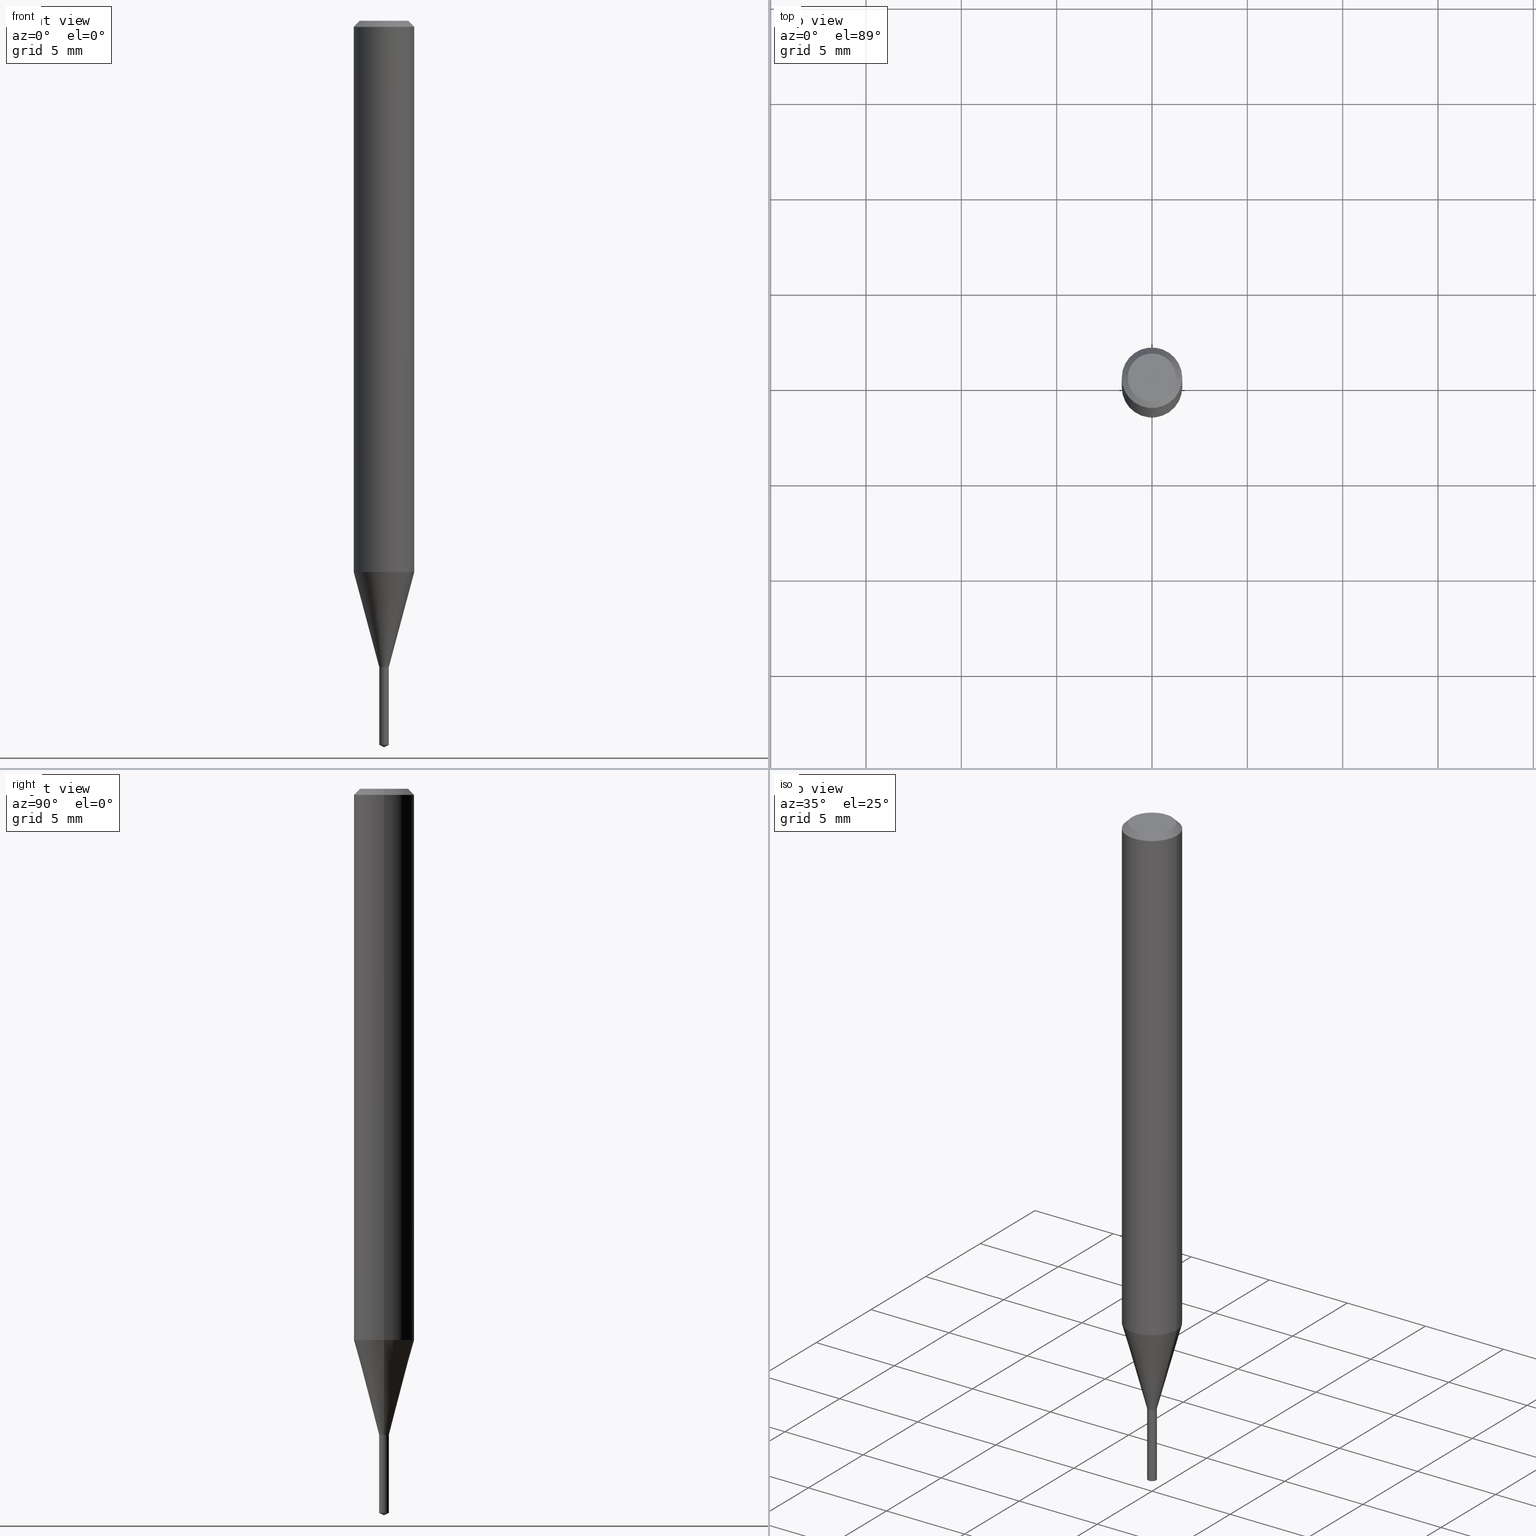
[diagram: canonical four-view strip — front | top / right | iso, engineering-drawing reading convention]
A machine part, canonical four-view strip (front | top / right | iso — engineering-drawing reading convention). The complete STEP part file that produces these views, byte-faithful:
ISO-10303-21;
HEADER;
FILE_DESCRIPTION (( 'STEP AP203' ),
    '1' );
FILE_NAME ('07125.STEP',
    '2024-04-23T19:36:31',
    ( '' ),
    ( '' ),
    'SwSTEP 2.0',
    'SolidWorks 2023',
    '' );
FILE_SCHEMA (( 'CONFIG_CONTROL_DESIGN' ));
ENDSEC;

DATA;
#1 = LINE ( 'NONE', #344, #278 ) ;
#2 = ORIENTED_EDGE ( 'NONE', *, *, #422, .T. ) ;
#3 = ADVANCED_FACE ( 'NONE', ( #464 ), #427, .F. ) ;
#4 = DIRECTION ( 'NONE',  ( -2.445468806185136877E-29, 3.491481338843145188E-15, 1.000000000000000000 ) ) ;
#5 = APPROVAL_ROLE ( '' ) ;
#6 = MANIFOLD_SOLID_BREP ( 'Body-Move/Copy2[1]', #353 ) ;
#7 = EDGE_CURVE ( 'NONE', #284, #342, #173, .T. ) ;
#8 = CARTESIAN_POINT ( 'NONE',  ( 3.663343386174265916E-29, -5.244181551552795844E-15, -1.500000000000000222 ) ) ;
#9 = CLOSED_SHELL ( 'NONE', ( #136, #288, #98, #67, #3, #365, #274, #163, #465, #113, #322, #266 ) ) ;
#10 = EDGE_CURVE ( 'NONE', #115, #234, #221, .T. ) ;
#11 = APPLICATION_PROTOCOL_DEFINITION ( 'international standard', 'config_control_design', 1994, #230 ) ;
#12 = EDGE_LOOP ( 'NONE', ( #185, #227, #340, #69 ) ) ;
#13 = EDGE_CURVE ( 'NONE', #370, #42, #61, .T. ) ;
#14 = EDGE_CURVE ( 'NONE', #72, #416, #101, .T. ) ;
#15 = LINE ( 'NONE', #352, #141 ) ;
#16 = ORIENTED_EDGE ( 'NONE', *, *, #422, .F. ) ;
#17 = DIRECTION ( 'NONE',  ( -2.445468806185136597E-29, 3.491481338843145583E-15, 1.000000000000000000 ) ) ;
#18 = VECTOR ( 'NONE', #228, 39.37007874015748854 ) ;
#19 = DIRECTION ( 'NONE',  ( -2.445468806185136597E-29, 3.491481338843145583E-15, 1.000000000000000000 ) ) ;
#20 = DATE_AND_TIME ( #294, #242 ) ;
#21 = DIRECTION ( 'NONE',  ( 1.000000000000000000, -6.982962677686266711E-15, 4.876176775795935793E-29 ) ) ;
#22 = LINE ( 'NONE', #470, #320 ) ;
#23 = PLANE ( 'NONE',  #382 ) ;
#24 = VECTOR ( 'NONE', #4, 39.37007874015748143 ) ;
#25 = EDGE_CURVE ( 'NONE', #380, #225, #381, .T. ) ;
#26 = SECURITY_CLASSIFICATION ( '', '', #246 ) ;
#27 = FACE_OUTER_BOUND ( 'NONE', #12, .T. ) ;
#28 = CARTESIAN_POINT ( 'NONE',  ( -0.01000000000000000021, -4.587280128708514635E-15, -1.334200000000000275 ) ) ;
#29 = EDGE_LOOP ( 'NONE', ( #196, #311, #187, #106 ) ) ;
#30 = DIRECTION ( 'NONE',  ( 2.445468806185136597E-29, -3.491481338843145583E-15, -1.000000000000000000 ) ) ;
#31 = VERTEX_POINT ( 'NONE', #8 ) ;
#32 = AXIS2_PLACEMENT_3D ( 'NONE', #337, #71, #406 ) ;
#33 = CC_DESIGN_PERSON_AND_ORGANIZATION_ASSIGNMENT ( #56, #88, ( #174 ) ) ;
#34 = DIRECTION ( 'NONE',  ( -2.442228924116177278E-29, 3.496121034368530563E-15, 1.000000000000000000 ) ) ;
#35 = EDGE_LOOP ( 'NONE', ( #152, #83, #407 ) ) ;
#36 = DIRECTION ( 'NONE',  ( 1.000000000000000000, -6.982962677686265922E-15, 4.876194921942043128E-29 ) ) ;
#37 = EDGE_LOOP ( 'NONE', ( #76, #319, #358, #302 ) ) ;
#38 = FACE_OUTER_BOUND ( 'NONE', #269, .T. ) ;
#39 = ORIENTED_EDGE ( 'NONE', *, *, #461, .F. ) ;
#40 = EDGE_CURVE ( 'NONE', #489, #370, #156, .T. ) ;
#41 = CARTESIAN_POINT ( 'NONE',  ( -0.01000000000000000021, 7.105427357601002007E-17, -4.918935090254906272E-31 ) ) ;
#42 = VERTEX_POINT ( 'NONE', #153 ) ;
#43 = ORIENTED_EDGE ( 'NONE', *, *, #57, .T. ) ;
#44 = AXIS2_PLACEMENT_3D ( 'NONE', #383, #117, #158 ) ;
#45 = CALENDAR_DATE ( 2024, 23, 4 ) ;
#46 = ORIENTED_EDGE ( 'NONE', *, *, #142, .F. ) ;
#47 = CARTESIAN_POINT ( 'NONE',  ( 0.06250000000000013878, -4.410674317752272148E-15, -1.138267332602639570 ) ) ;
#48 = CARTESIAN_POINT ( 'NONE',  ( 2.908885144957220354E-29, -4.153117052553921862E-15, -1.189500000000000002 ) ) ;
#49 = DIRECTION ( 'NONE',  ( -2.442228924116177278E-29, 3.496121034368530563E-15, 1.000000000000000000 ) ) ;
#50 = VECTOR ( 'NONE', #397, 39.37007874015748143 ) ;
#51 = PERSON ( 'UNSPECIFIED', 'UNSPECIFIED', 'UNSPECIFIED', ('UNSPECIFIED'), ('UNSPECIFIED'), ('UNSPECIFIED') ) ;
#52 = AXIS2_PLACEMENT_3D ( 'NONE', #179, #304, #445 ) ;
#53 = DIRECTION ( 'NONE',  ( -1.000000000000000000, 6.982962677686265922E-15, -4.876176775795935793E-29 ) ) ;
#54 = EDGE_CURVE ( 'NONE', #284, #42, #315, .T. ) ;
#55 = CYLINDRICAL_SURFACE ( 'NONE', #192, 0.06250000000000006939 ) ;
#56 = PERSON_AND_ORGANIZATION ( #51, #134 ) ;
#57 = EDGE_CURVE ( 'NONE', #351, #426, #361, .T. ) ;
#58 = DIRECTION ( 'NONE',  ( 1.000000000000000000, -6.982962677686266711E-15, 0.000000000000000000 ) ) ;
#59 = ADVANCED_FACE ( 'NONE', ( #122 ), #139, .T. ) ;
#60 = FACE_OUTER_BOUND ( 'NONE', #444, .T. ) ;
#61 = CIRCLE ( 'NONE', #412, 0.01000000000000000021 ) ;
#62 = CARTESIAN_POINT ( 'NONE',  ( 2.910107879360313156E-29, -4.154862793223344154E-15, -1.190000000000000169 ) ) ;
#63 = EDGE_LOOP ( 'NONE', ( #376, #378 ) ) ;
#64 = DIRECTION ( 'NONE',  ( -2.445468806185136877E-29, 3.491481338843145188E-15, 1.000000000000000000 ) ) ;
#65 = CC_DESIGN_DATE_AND_TIME_ASSIGNMENT ( #202, #257, ( #87 ) ) ;
#66 = ORIENTED_EDGE ( 'NONE', *, *, #40, .F. ) ;
#67 = ADVANCED_FACE ( 'NONE', ( #208 ), #285, .T. ) ;
#68 = DIRECTION ( 'NONE',  ( 1.000000000000000000, -6.982962677686266711E-15, 0.000000000000000000 ) ) ;
#69 = ORIENTED_EDGE ( 'NONE', *, *, #240, .F. ) ;
#70 = CIRCLE ( 'NONE', #260, 0.01000000000000000021 ) ;
#71 = DIRECTION ( 'NONE',  ( -2.438088387897960049E-29, 3.491481338843145188E-15, 1.000000000000000000 ) ) ;
#72 = VERTEX_POINT ( 'NONE', #327 ) ;
#73 = DIRECTION ( 'NONE',  ( -2.445468806185136597E-29, 3.491481338843145583E-15, 1.000000000000000000 ) ) ;
#74 = ORIENTED_EDGE ( 'NONE', *, *, #452, .F. ) ;
#75 =( NAMED_UNIT ( * ) PLANE_ANGLE_UNIT ( ) SI_UNIT ( $, .RADIAN. ) );
#76 = ORIENTED_EDGE ( 'NONE', *, *, #194, .F. ) ;
#77 = EDGE_CURVE ( 'NONE', #116, #265, #367, .T. ) ;
#78 = CONICAL_SURFACE ( 'NONE', #436, 0.009499999999999999764, 0.7853981633974130849 ) ;
#79 = DIRECTION ( 'NONE',  ( -1.000000000000000000, 6.982962677686266711E-15, 0.000000000000000000 ) ) ;
#80 = ORIENTED_EDGE ( 'NONE', *, *, #431, .F. ) ;
#81 = DIRECTION ( 'NONE',  ( -2.442228924116177278E-29, 3.496121034368530563E-15, 1.000000000000000000 ) ) ;
#82 = PERSON_AND_ORGANIZATION_ROLE ( 'creator' ) ;
#83 = ORIENTED_EDGE ( 'NONE', *, *, #431, .T. ) ;
#84 = AXIS2_PLACEMENT_3D ( 'NONE', #124, #281, #282 ) ;
#85 = CONICAL_SURFACE ( 'NONE', #52, 0.01000000000000000021, 0.2617993877991570129 ) ;
#86 = DIRECTION ( 'NONE',  ( 1.000000000000000000, -6.982962677686265922E-15, 4.876176775795935793E-29 ) ) ;
#87 = PRODUCT_DEFINITION ( 'UNKNOWN', '', #174, #385 ) ;
#88 = PERSON_AND_ORGANIZATION_ROLE ( 'creator' ) ;
#89 = CARTESIAN_POINT ( 'NONE',  ( 0.000000000000000000, 0.000000000000000000, 0.000000000000000000 ) ) ;
#90 = APPROVAL_STATUS ( 'not_yet_approved' ) ;
#91 = LINE ( 'NONE', #248, #50 ) ;
#92 = COORDINATED_UNIVERSAL_TIME_OFFSET ( 5, 0, .BEHIND. ) ;
#93 = CONICAL_SURFACE ( 'NONE', #328, 0.009499999999999999764, 0.7853981633974130849 ) ;
#94 = VECTOR ( 'NONE', #64, 39.37007874015748143 ) ;
#95 = LINE ( 'NONE', #133, #335 ) ;
#96 = CC_DESIGN_PERSON_AND_ORGANIZATION_ASSIGNMENT ( #403, #211, ( #26 ) ) ;
#97 = ADVANCED_BREP_SHAPE_REPRESENTATION ( '07125', ( #6, #482, #44 ), #293 ) ;
#98 = ADVANCED_FACE ( 'NONE', ( #363 ), #330, .T. ) ;
#99 = DIRECTION ( 'NONE',  ( -2.445468806185136877E-29, 3.491481338843145188E-15, 1.000000000000000000 ) ) ;
#100 = CARTESIAN_POINT ( 'NONE',  ( 2.910107879360313156E-29, -4.154862793223344154E-15, -1.190000000000000169 ) ) ;
#101 = CIRCLE ( 'NONE', #84, 0.06250000000000013878 ) ;
#102 = PLANE ( 'NONE',  #32 ) ;
#103 = AXIS2_PLACEMENT_3D ( 'NONE', #168, #258, #368 ) ;
#104 = LOCAL_TIME ( 15, 36, 31.00000000000000000, #471 ) ;
#105 = CARTESIAN_POINT ( 'NONE',  ( 2.910107879360313156E-29, -4.154862793223344154E-15, -1.190000000000000169 ) ) ;
#106 = ORIENTED_EDGE ( 'NONE', *, *, #222, .F. ) ;
#107 = CARTESIAN_POINT ( 'NONE',  ( -0.06250000000000000000, -1.564852123716145826E-15, -0.01250000000000008049 ) ) ;
#108 = ORIENTED_EDGE ( 'NONE', *, *, #310, .T. ) ;
#109 = DIRECTION ( 'NONE',  ( 1.000000000000000000, -6.982962677686262766E-15, 0.000000000000000000 ) ) ;
#110 = EDGE_LOOP ( 'NONE', ( #199, #391 ) ) ;
#111 = CIRCLE ( 'NONE', #481, 0.01000000000000000021 ) ;
#112 = AXIS2_PLACEMENT_3D ( 'NONE', #339, #447, #109 ) ;
#113 = ADVANCED_FACE ( 'NONE', ( #402 ), #23, .F. ) ;
#114 = CYLINDRICAL_SURFACE ( 'NONE', #442, 0.01000000000000000021 ) ;
#115 = VERTEX_POINT ( 'NONE', #170 ) ;
#116 = VERTEX_POINT ( 'NONE', #291 ) ;
#117 = DIRECTION ( 'NONE',  ( 0.000000000000000000, 0.000000000000000000, 1.000000000000000000 ) ) ;
#118 = DIRECTION ( 'NONE',  ( 0.7071067811865225927, -2.468850131081995948E-15, 0.7071067811865724417 ) ) ;
#119 = AXIS2_PLACEMENT_3D ( 'NONE', #188, #488, #270 ) ;
#120 = CARTESIAN_POINT ( 'NONE',  ( -0.009499999999999999764, -4.087361233326134182E-15, -1.190000000000000169 ) ) ;
#121 = APPROVAL ( #90, 'UNSPECIFIED' ) ;
#122 = FACE_OUTER_BOUND ( 'NONE', #35, .T. ) ;
#123 = DATE_AND_TIME ( #455, #476 ) ;
#124 = CARTESIAN_POINT ( 'NONE',  ( 2.783597254979316381E-29, -3.974239150396879690E-15, -1.138267332602639570 ) ) ;
#125 = APPROVAL_DATE_TIME ( #123, #249 ) ;
#126 = ORIENTED_EDGE ( 'NONE', *, *, #167, .T. ) ;
#127 = AXIS2_PLACEMENT_3D ( 'NONE', #349, #273, #86 ) ;
#128 = CIRCLE ( 'NONE', #392, 0.009499999999999999764 ) ;
#129 = FACE_OUTER_BOUND ( 'NONE', #318, .T. ) ;
#130 = APPLICATION_CONTEXT ( 'configuration controlled 3d designs of mechanical parts and assemblies' ) ;
#131 = DIRECTION ( 'NONE',  ( -6.982962677686265922E-15, -1.000000000000000000, 0.000000000000000000 ) ) ;
#132 = APPROVAL_DATE_TIME ( #213, #485 ) ;
#133 = CARTESIAN_POINT ( 'NONE',  ( 7.105427357603910931E-17, 0.009999999999995843811, -1.190000000000000169 ) ) ;
#134 = ORGANIZATION ( 'UNSPECIFIED', 'UNSPECIFIED', '' ) ;
#135 = CARTESIAN_POINT ( 'NONE',  ( 0.06250000000000000000, -4.724246415962602840E-16, -0.01250000000000008049 ) ) ;
#136 = ADVANCED_FACE ( 'NONE', ( #60 ), #93, .T. ) ;
#137 = DIRECTION ( 'NONE',  ( -2.442228924116177278E-29, 3.496121034368530563E-15, 1.000000000000000000 ) ) ;
#138 = CARTESIAN_POINT ( 'NONE',  ( 2.910107879360313156E-29, -4.154862793223344154E-15, -1.190000000000000169 ) ) ;
#139 = CONICAL_SURFACE ( 'NONE', #450, 84.42940631926779815, 1.134464013796286253 ) ;
#140 = CARTESIAN_POINT ( 'NONE',  ( 0.009499999999999999764, -4.221200938661363657E-15, -1.190000000000000169 ) ) ;
#141 = VECTOR ( 'NONE', #283, 39.37007874015748854 ) ;
#142 = EDGE_CURVE ( 'NONE', #189, #489, #111, .T. ) ;
#143 = ORIENTED_EDGE ( 'NONE', *, *, #279, .F. ) ;
#144 = FACE_OUTER_BOUND ( 'NONE', #229, .T. ) ;
#145 = EDGE_LOOP ( 'NONE', ( #467, #108, #484, #463 ) ) ;
#146 = DIRECTION ( 'NONE',  ( -2.442228924116177278E-29, 3.496121034368530563E-15, 1.000000000000000000 ) ) ;
#147 = ORIENTED_EDGE ( 'NONE', *, *, #413, .T. ) ;
#148 = DIRECTION ( 'NONE',  ( 6.982962677686265922E-15, 1.000000000000000000, -3.496121034368530563E-15 ) ) ;
#149 = ORIENTED_EDGE ( 'NONE', *, *, #14, .F. ) ;
#150 = AXIS2_PLACEMENT_3D ( 'NONE', #89, #366, #21 ) ;
#151 = LENGTH_MEASURE_WITH_UNIT ( LENGTH_MEASURE( 0.02539999999999999897 ), #237 );
#152 = ORIENTED_EDGE ( 'NONE', *, *, #160, .F. ) ;
#153 = CARTESIAN_POINT ( 'NONE',  ( 0.01000000000000000021, -4.222946679330785160E-15, -1.189500000000000002 ) ) ;
#154 = CC_DESIGN_PERSON_AND_ORGANIZATION_ASSIGNMENT ( #350, #82, ( #87 ) ) ;
#155 = CARTESIAN_POINT ( 'NONE',  ( 3.056836007731440539E-31, -4.364351673553960451E-17, -0.01250000000000008049 ) ) ;
#156 = LINE ( 'NONE', #41, #24 ) ;
#157 = CC_DESIGN_SECURITY_CLASSIFICATION ( #26, ( #174 ) ) ;
#158 = DIRECTION ( 'NONE',  ( 1.000000000000000000, 0.000000000000000000, 0.000000000000000000 ) ) ;
#159 = ORIENTED_EDGE ( 'NONE', *, *, #252, .F. ) ;
#160 = EDGE_CURVE ( 'NONE', #31, #426, #22, .T. ) ;
#161 =( CONVERSION_BASED_UNIT ( 'INCH', #151 ) LENGTH_UNIT ( ) NAMED_UNIT ( #373 ) );
#162 = EDGE_LOOP ( 'NONE', ( #191, #300, #220, #454 ) ) ;
#163 = ADVANCED_FACE ( 'NONE', ( #27 ), #55, .T. ) ;
#164 = DIRECTION ( 'NONE',  ( -2.445468806185136597E-29, 3.491481338843145583E-15, 1.000000000000000000 ) ) ;
#165 = CIRCLE ( 'NONE', #250, 0.01000000000000000021 ) ;
#166 = VECTOR ( 'NONE', #186, 39.37007874015748143 ) ;
#167 = EDGE_CURVE ( 'NONE', #225, #116, #176, .T. ) ;
#168 = CARTESIAN_POINT ( 'NONE',  ( 3.262744481212209726E-29, -4.658334402284525505E-15, -1.334200000000000275 ) ) ;
#169 = PERSON_AND_ORGANIZATION_ROLE ( 'design_supplier' ) ;
#170 = CARTESIAN_POINT ( 'NONE',  ( 7.105427357604662814E-17, 0.009999999999995843811, -1.190000000000000169 ) ) ;
#171 = CARTESIAN_POINT ( 'NONE',  ( 0.000000000000000000, 0.000000000000000000, 0.000000000000000000 ) ) ;
#172 = ADVANCED_FACE ( 'NONE', ( #129 ), #314, .T. ) ;
#173 = CIRCLE ( 'NONE', #201, 0.009499999999999999764 ) ;
#174 = PRODUCT_DEFINITION_FORMATION_WITH_SPECIFIED_SOURCE ( 'ANY', '', #323, .NOT_KNOWN. ) ;
#175 = LINE ( 'NONE', #287, #259 ) ;
#176 = LINE ( 'NONE', #135, #182 ) ;
#177 = CC_DESIGN_PERSON_AND_ORGANIZATION_ASSIGNMENT ( #421, #275, ( #323 ) ) ;
#178 = EDGE_CURVE ( 'NONE', #234, #115, #165, .T. ) ;
#179 = CARTESIAN_POINT ( 'NONE',  ( 3.262744481212209726E-29, -4.658334402284525505E-15, -1.334200000000000275 ) ) ;
#180 = ORIENTED_EDGE ( 'NONE', *, *, #181, .T. ) ;
#181 = EDGE_CURVE ( 'NONE', #189, #42, #175, .T. ) ;
#182 = VECTOR ( 'NONE', #331, 39.37007874015748143 ) ;
#183 = DIRECTION ( 'NONE',  ( -2.445468806185136597E-29, 3.491481338843145583E-15, 1.000000000000000000 ) ) ;
#184 = APPROVAL_PERSON_ORGANIZATION ( #462, #249, #5 ) ;
#185 = ORIENTED_EDGE ( 'NONE', *, *, #310, .F. ) ;
#186 = DIRECTION ( 'NONE',  ( -0.7071067811865453523, 2.468850131082234184E-15, -0.7071067811865496822 ) ) ;
#187 = ORIENTED_EDGE ( 'NONE', *, *, #178, .F. ) ;
#188 = CARTESIAN_POINT ( 'NONE',  ( 3.655810545333496901E-29, -5.222357633755958813E-15, -1.495336923418449704 ) ) ;
#189 = VERTEX_POINT ( 'NONE', #435 ) ;
#190 = CARTESIAN_POINT ( 'NONE',  ( -0.01000000000000000021, -4.334671453843213207E-15, -1.189500000000000002 ) ) ;
#191 = ORIENTED_EDGE ( 'NONE', *, *, #167, .F. ) ;
#192 = AXIS2_PLACEMENT_3D ( 'NONE', #171, #404, #433 ) ;
#193 = APPROVAL_PERSON_ORGANIZATION ( #396, #485, #325 ) ;
#194 = EDGE_CURVE ( 'NONE', #489, #189, #374, .T. ) ;
#195 = APPROVAL_STATUS ( 'not_yet_approved' ) ;
#196 = ORIENTED_EDGE ( 'NONE', *, *, #343, .T. ) ;
#197 = COORDINATED_UNIVERSAL_TIME_OFFSET ( 5, 0, .BEHIND. ) ;
#198 = DIRECTION ( 'NONE',  ( 1.000000000000000000, -6.982962677686265922E-15, 4.876194921942043128E-29 ) ) ;
#199 = ORIENTED_EDGE ( 'NONE', *, *, #25, .T. ) ;
#200 = UNCERTAINTY_MEASURE_WITH_UNIT (LENGTH_MEASURE( 1.000000000000000082E-05 ), #161, 'distance_accuracy_value', 'NONE');
#201 = AXIS2_PLACEMENT_3D ( 'NONE', #238, #17, #389 ) ;
#202 = DATE_AND_TIME ( #45, #428 ) ;
#203 = ORIENTED_EDGE ( 'NONE', *, *, #297, .F. ) ;
#204 = ADVANCED_FACE ( 'NONE', ( #254 ), #256, .T. ) ;
#205 = PERSON_AND_ORGANIZATION ( #51, #134 ) ;
#206 = DIRECTION ( 'NONE',  ( 1.000000000000000000, -6.982962677686284065E-15, 0.000000000000000000 ) ) ;
#207 = PERSON_AND_ORGANIZATION ( #51, #134 ) ;
#208 = FACE_OUTER_BOUND ( 'NONE', #456, .T. ) ;
#209 = CIRCLE ( 'NONE', #441, 0.06250000000000000000 ) ;
#210 = CARTESIAN_POINT ( 'NONE',  ( 3.056836007731440539E-31, -4.364351673553960451E-17, -0.01250000000000008049 ) ) ;
#211 = PERSON_AND_ORGANIZATION_ROLE ( 'classification_officer' ) ;
#212 = DIRECTION ( 'NONE',  ( -6.982962677686266711E-15, -1.000000000000000000, 3.520397390770726421E-15 ) ) ;
#213 = DATE_AND_TIME ( #255, #104 ) ;
#214 = DIRECTION ( 'NONE',  ( -6.982962677686266711E-15, -1.000000000000000000, 3.520397390770726421E-15 ) ) ;
#215 = AXIS2_PLACEMENT_3D ( 'NONE', #295, #49, #214 ) ;
#216 = DIRECTION ( 'NONE',  ( -2.445468806185136597E-29, 3.491481338843145583E-15, 1.000000000000000000 ) ) ;
#217 = DIRECTION ( 'NONE',  ( 1.000000000000000000, -6.982962677686281699E-15, 0.000000000000000000 ) ) ;
#218 = ORIENTED_EDGE ( 'NONE', *, *, #142, .T. ) ;
#219 = CARTESIAN_POINT ( 'NONE',  ( 3.056836007731440539E-31, -4.364351673553960451E-17, -0.01250000000000008049 ) ) ;
#220 = ORIENTED_EDGE ( 'NONE', *, *, #279, .T. ) ;
#221 = CIRCLE ( 'NONE', #398, 0.01000000000000000021 ) ;
#222 = EDGE_CURVE ( 'NONE', #426, #234, #91, .T. ) ;
#223 = LINE ( 'NONE', #28, #18 ) ;
#224 = VECTOR ( 'NONE', #280, 39.37007874015748854 ) ;
#225 = VERTEX_POINT ( 'NONE', #472 ) ;
#226 = LINE ( 'NONE', #299, #166 ) ;
#227 = ORIENTED_EDGE ( 'NONE', *, *, #14, .T. ) ;
#228 = DIRECTION ( 'NONE',  ( -0.2588190451025280114, 5.211531920934590485E-15, 0.9659258262890662028 ) ) ;
#229 = EDGE_LOOP ( 'NONE', ( #411, #305 ) ) ;
#230 = APPLICATION_CONTEXT ( 'configuration controlled 3d designs of mechanical parts and assemblies' ) ;
#231 = DIRECTION ( 'NONE',  ( 1.000000000000000000, -6.982962677686284065E-15, 0.000000000000000000 ) ) ;
#232 = EDGE_CURVE ( 'NONE', #351, #115, #95, .T. ) ;
#233 = AXIS2_PLACEMENT_3D ( 'NONE', #477, #326, #290 ) ;
#234 = VERTEX_POINT ( 'NONE', #264 ) ;
#235 = MECHANICAL_CONTEXT ( 'NONE', #230, 'mechanical' ) ;
#236 = ORIENTED_EDGE ( 'NONE', *, *, #452, .T. ) ;
#237 =( LENGTH_UNIT ( ) NAMED_UNIT ( * ) SI_UNIT ( $, .METRE. ) );
#238 = CARTESIAN_POINT ( 'NONE',  ( 2.910107879360313156E-29, -4.154862793223344154E-15, -1.190000000000000169 ) ) ;
#239 = COORDINATED_UNIVERSAL_TIME_OFFSET ( 5, 0, .BEHIND. ) ;
#240 = EDGE_CURVE ( 'NONE', #265, #116, #209, .T. ) ;
#241 = EDGE_LOOP ( 'NONE', ( #316, #43, #446, #338 ) ) ;
#242 = LOCAL_TIME ( 15, 36, 31.00000000000000000, #289 ) ;
#243 = CC_DESIGN_DATE_AND_TIME_ASSIGNMENT ( #286, #253, ( #26 ) ) ;
#244 = DIRECTION ( 'NONE',  ( -2.445468806185136877E-29, 3.491481338843145188E-15, 1.000000000000000000 ) ) ;
#245 = ORIENTED_EDGE ( 'NONE', *, *, #13, .F. ) ;
#246 = SECURITY_CLASSIFICATION_LEVEL ( 'unclassified' ) ;
#247 = DIRECTION ( 'NONE',  ( -6.328713451373285759E-15, -0.9063077870366366140, 0.4226182617407279185 ) ) ;
#248 = CARTESIAN_POINT ( 'NONE',  ( -6.982962677683355567E-17, -0.01000000000000415487, -1.190000000000000169 ) ) ;
#249 = APPROVAL ( #195, 'UNSPECIFIED' ) ;
#250 = AXIS2_PLACEMENT_3D ( 'NONE', #324, #137, #131 ) ;
#251 = AXIS2_PLACEMENT_3D ( 'NONE', #138, #146, #267 ) ;
#252 = EDGE_CURVE ( 'NONE', #489, #72, #223, .T. ) ;
#253 = DATE_TIME_ROLE ( 'classification_date' ) ;
#254 = FACE_OUTER_BOUND ( 'NONE', #241, .T. ) ;
#255 = CALENDAR_DATE ( 2024, 23, 4 ) ;
#256 = CYLINDRICAL_SURFACE ( 'NONE', #233, 0.01000000000000000021 ) ;
#257 = DATE_TIME_ROLE ( 'creation_date' ) ;
#258 = DIRECTION ( 'NONE',  ( -2.445468806185136597E-29, 3.491481338843145583E-15, 1.000000000000000000 ) ) ;
#259 = VECTOR ( 'NONE', #99, 39.37007874015748143 ) ;
#260 = AXIS2_PLACEMENT_3D ( 'NONE', #390, #313, #231 ) ;
#261 = FACE_OUTER_BOUND ( 'NONE', #63, .T. ) ;
#262 = CARTESIAN_POINT ( 'NONE',  ( 2.910107879360313156E-29, -4.154862793223344154E-15, -1.190000000000000169 ) ) ;
#263 = ORIENTED_EDGE ( 'NONE', *, *, #54, .T. ) ;
#264 = CARTESIAN_POINT ( 'NONE',  ( -6.982962677683355567E-17, -0.01000000000000415487, -1.190000000000000169 ) ) ;
#265 = VERTEX_POINT ( 'NONE', #107 ) ;
#266 = ADVANCED_FACE ( 'NONE', ( #375 ), #78, .T. ) ;
#267 = DIRECTION ( 'NONE',  ( -6.982962677686265922E-15, -1.000000000000000000, 0.000000000000000000 ) ) ;
#268 = VECTOR ( 'NONE', #272, 39.37007874015748143 ) ;
#269 = EDGE_LOOP ( 'NONE', ( #309, #126, #418, #143 ) ) ;
#270 = DIRECTION ( 'NONE',  ( -6.982962677686266711E-15, -1.000000000000000000, 0.000000000000000000 ) ) ;
#271 = ORIENTED_EDGE ( 'NONE', *, *, #194, .T. ) ;
#272 = DIRECTION ( 'NONE',  ( -0.7071067811865225927, 7.493145998870264230E-15, 0.7071067811865724417 ) ) ;
#273 = DIRECTION ( 'NONE',  ( -2.445468806185136597E-29, 3.491481338843145583E-15, 1.000000000000000000 ) ) ;
#274 = ADVANCED_FACE ( 'NONE', ( #332 ), #85, .T. ) ;
#275 = PERSON_AND_ORGANIZATION_ROLE ( 'design_owner' ) ;
#276 = AXIS2_PLACEMENT_3D ( 'NONE', #354, #384, #198 ) ;
#277 = DIRECTION ( 'NONE',  ( -2.442228924116177278E-29, 3.496121034368530563E-15, 1.000000000000000000 ) ) ;
#278 = VECTOR ( 'NONE', #244, 39.37007874015748143 ) ;
#279 = EDGE_CURVE ( 'NONE', #380, #265, #226, .T. ) ;
#280 = DIRECTION ( 'NONE',  ( 0.2588190451025280114, 1.565188264969568522E-15, 0.9659258262890662028 ) ) ;
#281 = DIRECTION ( 'NONE',  ( -2.445468806185136597E-29, 3.491481338843145583E-15, 1.000000000000000000 ) ) ;
#282 = DIRECTION ( 'NONE',  ( 1.000000000000000000, -6.982962677686262766E-15, 0.000000000000000000 ) ) ;
#283 = DIRECTION ( 'NONE',  ( 6.439704144416938845E-15, 0.9063077870366395006, 0.4226182617407215902 ) ) ;
#284 = VERTEX_POINT ( 'NONE', #140 ) ;
#285 = CONICAL_SURFACE ( 'NONE', #103, 0.01000000000000000021, 0.2617993877991570129 ) ;
#286 = DATE_AND_TIME ( #473, #321 ) ;
#287 = CARTESIAN_POINT ( 'NONE',  ( 0.01000000000000000021, -6.982962677686265724E-17, 4.876176775795935968E-31 ) ) ;
#288 = ADVANCED_FACE ( 'NONE', ( #38 ), #405, .T. ) ;
#289 = COORDINATED_UNIVERSAL_TIME_OFFSET ( 5, 0, .BEHIND. ) ;
#290 = DIRECTION ( 'NONE',  ( -6.982962677686265922E-15, -1.000000000000000000, 0.000000000000000000 ) ) ;
#291 = CARTESIAN_POINT ( 'NONE',  ( 0.06250000000000000000, -4.800786840909312308E-16, -0.01250000000000008049 ) ) ;
#292 = AXIS2_PLACEMENT_3D ( 'NONE', #210, #395, #58 ) ;
#293 =( GEOMETRIC_REPRESENTATION_CONTEXT ( 3 ) GLOBAL_UNCERTAINTY_ASSIGNED_CONTEXT ( ( #200 ) ) GLOBAL_UNIT_ASSIGNED_CONTEXT ( ( #161, #75, #459 ) ) REPRESENTATION_CONTEXT ( 'NONE', 'WORKASPACE' ) );
#294 = CALENDAR_DATE ( 2024, 23, 4 ) ;
#295 = CARTESIAN_POINT ( 'NONE',  ( -9.248354619810765707E-28, 1.324039000943322909E-13, 37.87007874015748143 ) ) ;
#296 = DIRECTION ( 'NONE',  ( 1.000000000000000000, -6.982962677686281699E-15, 0.000000000000000000 ) ) ;
#297 = EDGE_CURVE ( 'NONE', #416, #72, #451, .T. ) ;
#298 = DIRECTION ( 'NONE',  ( -2.445468806185136597E-29, 3.491481338843145583E-15, 1.000000000000000000 ) ) ;
#299 = CARTESIAN_POINT ( 'NONE',  ( -0.06250000000000000000, 3.927916506198521080E-16, -0.01250000000000008049 ) ) ;
#300 = ORIENTED_EDGE ( 'NONE', *, *, #25, .F. ) ;
#301 = DIRECTION ( 'NONE',  ( 1.000000000000000000, -6.982962677686265922E-15, 4.876176775795935793E-29 ) ) ;
#302 = ORIENTED_EDGE ( 'NONE', *, *, #181, .F. ) ;
#303 = ADVANCED_FACE ( 'NONE', ( #486 ), #371, .T. ) ;
#304 = DIRECTION ( 'NONE',  ( -2.445468806185136597E-29, 3.491481338843145583E-15, 1.000000000000000000 ) ) ;
#305 = ORIENTED_EDGE ( 'NONE', *, *, #10, .T. ) ;
#306 = AXIS2_PLACEMENT_3D ( 'NONE', #460, #277, #423 ) ;
#307 = PLANE ( 'NONE',  #362 ) ;
#308 = CC_DESIGN_APPROVAL ( #485, ( #26 ) ) ;
#309 = ORIENTED_EDGE ( 'NONE', *, *, #334, .F. ) ;
#310 = EDGE_CURVE ( 'NONE', #72, #265, #415, .T. ) ;
#311 = ORIENTED_EDGE ( 'NONE', *, *, #232, .T. ) ;
#312 = CARTESIAN_POINT ( 'NONE',  ( 2.910107879360313156E-29, -4.154862793223344154E-15, -1.190000000000000169 ) ) ;
#313 = DIRECTION ( 'NONE',  ( -2.445468806185136597E-29, 3.491481338843145583E-15, 1.000000000000000000 ) ) ;
#314 = CONICAL_SURFACE ( 'NONE', #215, 84.42940631926779815, 1.134464013796286253 ) ;
#315 = LINE ( 'NONE', #457, #475 ) ;
#316 = ORIENTED_EDGE ( 'NONE', *, *, #232, .F. ) ;
#317 = CARTESIAN_POINT ( 'NONE',  ( -6.982962677682611080E-17, -0.01000000000000522520, -1.495336923418449704 ) ) ;
#318 = EDGE_LOOP ( 'NONE', ( #80, #372, #449 ) ) ;
#319 = ORIENTED_EDGE ( 'NONE', *, *, #40, .T. ) ;
#320 = VECTOR ( 'NONE', #247, 39.37007874015748854 ) ;
#321 = LOCAL_TIME ( 15, 36, 31.00000000000000000, #92 ) ;
#322 = ADVANCED_FACE ( 'NONE', ( #261 ), #102, .F. ) ;
#323 = PRODUCT ( '07125', '07125', '', ( #235 ) ) ;
#324 = CARTESIAN_POINT ( 'NONE',  ( 2.910107879360313156E-29, -4.154862793223344154E-15, -1.190000000000000169 ) ) ;
#325 = APPROVAL_ROLE ( '' ) ;
#326 = DIRECTION ( 'NONE',  ( -2.442228924116177278E-29, 3.496121034368530563E-15, 1.000000000000000000 ) ) ;
#327 = CARTESIAN_POINT ( 'NONE',  ( -0.06250000000000013878, -3.530149940546815891E-15, -1.138267332602639570 ) ) ;
#328 = AXIS2_PLACEMENT_3D ( 'NONE', #100, #216, #296 ) ;
#329 = APPROVAL_PERSON_ORGANIZATION ( #205, #121, #466 ) ;
#330 = CYLINDRICAL_SURFACE ( 'NONE', #150, 0.06250000000000006939 ) ;
#331 = DIRECTION ( 'NONE',  ( 0.7071067811865453523, -7.319954787623248157E-15, -0.7071067811865496822 ) ) ;
#332 = FACE_OUTER_BOUND ( 'NONE', #357, .T. ) ;
#333 = ORIENTED_EDGE ( 'NONE', *, *, #252, .T. ) ;
#334 = EDGE_CURVE ( 'NONE', #225, #380, #468, .T. ) ;
#335 = VECTOR ( 'NONE', #34, 39.37007874015748143 ) ;
#336 = AXIS2_PLACEMENT_3D ( 'NONE', #377, #183, #36 ) ;
#337 = CARTESIAN_POINT ( 'NONE',  ( 2.910107879360313156E-29, -4.154862793223344154E-15, -1.190000000000000169 ) ) ;
#338 = ORIENTED_EDGE ( 'NONE', *, *, #10, .F. ) ;
#339 = CARTESIAN_POINT ( 'NONE',  ( 2.783597254979316381E-29, -3.974239150396879690E-15, -1.138267332602639570 ) ) ;
#340 = ORIENTED_EDGE ( 'NONE', *, *, #434, .T. ) ;
#341 = CARTESIAN_POINT ( 'NONE',  ( -0.06250000000000006939, 4.440892098500631092E-16, -3.074334431409319267E-30 ) ) ;
#342 = VERTEX_POINT ( 'NONE', #483 ) ;
#343 = EDGE_CURVE ( 'NONE', #426, #351, #437, .T. ) ;
#344 = CARTESIAN_POINT ( 'NONE',  ( 0.06250000000000006939, -4.364351673553921624E-16, 3.047610484872463374E-30 ) ) ;
#345 = CONICAL_SURFACE ( 'NONE', #355, 0.06250000000000000000, 0.7853981633974452814 ) ;
#346 = ORIENTED_EDGE ( 'NONE', *, *, #54, .F. ) ;
#347 = ADVANCED_FACE ( 'NONE', ( #144 ), #307, .F. ) ;
#348 = LINE ( 'NONE', #388, #224 ) ;
#349 = CARTESIAN_POINT ( 'NONE',  ( 0.000000000000000000, 0.000000000000000000, 0.000000000000000000 ) ) ;
#350 = PERSON_AND_ORGANIZATION ( #51, #134 ) ;
#351 = VERTEX_POINT ( 'NONE', #443 ) ;
#352 = CARTESIAN_POINT ( 'NONE',  ( 3.671121921158851526E-29, -5.233139076202380057E-15, -1.500000000000000222 ) ) ;
#353 = CLOSED_SHELL ( 'NONE', ( #303, #59, #172, #204, #347 ) ) ;
#354 = CARTESIAN_POINT ( 'NONE',  ( -8.265746106709734507E-48, 1.180129479067563789E-33, 3.380025165646692144E-19 ) ) ;
#355 = AXIS2_PLACEMENT_3D ( 'NONE', #155, #424, #79 ) ;
#356 = CARTESIAN_POINT ( 'NONE',  ( -0.01000000000000000021, -4.334671453843213207E-15, -1.334200000000000275 ) ) ;
#357 = EDGE_LOOP ( 'NONE', ( #159, #271, #480, #149 ) ) ;
#358 = ORIENTED_EDGE ( 'NONE', *, *, #13, .T. ) ;
#359 = APPROVAL_STATUS ( 'not_yet_approved' ) ;
#360 = CARTESIAN_POINT ( 'NONE',  ( 3.262744481212209726E-29, -4.658334402284525505E-15, -1.334200000000000275 ) ) ;
#361 = CIRCLE ( 'NONE', #306, 0.01000000000000000194 ) ;
#362 = AXIS2_PLACEMENT_3D ( 'NONE', #62, #440, #148 ) ;
#363 = FACE_OUTER_BOUND ( 'NONE', #145, .T. ) ;
#364 = DIRECTION ( 'NONE',  ( 2.438088387897960049E-29, -3.491481338843145188E-15, -1.000000000000000000 ) ) ;
#365 = ADVANCED_FACE ( 'NONE', ( #379 ), #114, .F. ) ;
#366 = DIRECTION ( 'NONE',  ( -2.445468806185136597E-29, 3.491481338843145583E-15, 1.000000000000000000 ) ) ;
#367 = CIRCLE ( 'NONE', #292, 0.06250000000000000000 ) ;
#368 = DIRECTION ( 'NONE',  ( 1.000000000000000000, -6.982962677686235945E-15, 0.000000000000000000 ) ) ;
#369 = DIRECTION ( 'NONE',  ( 1.000000000000000000, -6.982962677686281699E-15, 0.000000000000000000 ) ) ;
#370 = VERTEX_POINT ( 'NONE', #190 ) ;
#371 = CYLINDRICAL_SURFACE ( 'NONE', #251, 0.01000000000000000021 ) ;
#372 = ORIENTED_EDGE ( 'NONE', *, *, #160, .T. ) ;
#373 = DIMENSIONAL_EXPONENTS ( 1.000000000000000000, 0.000000000000000000, 0.000000000000000000, 0.000000000000000000, 0.000000000000000000, 0.000000000000000000, 0.000000000000000000 ) ;
#374 = CIRCLE ( 'NONE', #490, 0.01000000000000000021 ) ;
#375 = FACE_OUTER_BOUND ( 'NONE', #409, .T. ) ;
#376 = ORIENTED_EDGE ( 'NONE', *, *, #7, .F. ) ;
#377 = CARTESIAN_POINT ( 'NONE',  ( -8.265746106709734507E-48, 1.180129479067563789E-33, 3.380025165646692144E-19 ) ) ;
#378 = ORIENTED_EDGE ( 'NONE', *, *, #413, .F. ) ;
#379 = FACE_OUTER_BOUND ( 'NONE', #387, .T. ) ;
#380 = VERTEX_POINT ( 'NONE', #478 ) ;
#381 = CIRCLE ( 'NONE', #276, 0.04999999999999999584 ) ;
#382 = AXIS2_PLACEMENT_3D ( 'NONE', #401, #364, #53 ) ;
#383 = CARTESIAN_POINT ( 'NONE',  ( 0.000000000000000000, 0.000000000000000000, 0.000000000000000000 ) ) ;
#384 = DIRECTION ( 'NONE',  ( -2.445468806185136597E-29, 3.491481338843145583E-15, 1.000000000000000000 ) ) ;
#385 = DESIGN_CONTEXT ( 'detailed design', #130, 'design' ) ;
#386 = APPLICATION_PROTOCOL_DEFINITION ( 'international standard', 'config_control_design', 1994, #130 ) ;
#387 = EDGE_LOOP ( 'NONE', ( #66, #46, #180, #2 ) ) ;
#388 = CARTESIAN_POINT ( 'NONE',  ( 0.01000000000000000021, -4.728164029061387226E-15, -1.334200000000000275 ) ) ;
#389 = DIRECTION ( 'NONE',  ( 1.000000000000000000, -6.982962677686281699E-15, 0.000000000000000000 ) ) ;
#390 = CARTESIAN_POINT ( 'NONE',  ( 2.908885144957220354E-29, -4.153117052553921862E-15, -1.189500000000000002 ) ) ;
#391 = ORIENTED_EDGE ( 'NONE', *, *, #334, .T. ) ;
#392 = AXIS2_PLACEMENT_3D ( 'NONE', #105, #298, #217 ) ;
#393 = LINE ( 'NONE', #120, #268 ) ;
#394 = DIRECTION ( 'NONE',  ( -6.982962677686265922E-15, -1.000000000000000000, 0.000000000000000000 ) ) ;
#395 = DIRECTION ( 'NONE',  ( -2.445468806185136597E-29, 3.491481338843145583E-15, 1.000000000000000000 ) ) ;
#396 = PERSON_AND_ORGANIZATION ( #51, #134 ) ;
#397 = DIRECTION ( 'NONE',  ( -2.442228924116177278E-29, 3.496121034368530563E-15, 1.000000000000000000 ) ) ;
#398 = AXIS2_PLACEMENT_3D ( 'NONE', #312, #420, #394 ) ;
#399 = CC_DESIGN_APPROVAL ( #121, ( #174 ) ) ;
#400 = SHAPE_DEFINITION_REPRESENTATION ( #469, #97 ) ;
#401 = CARTESIAN_POINT ( 'NONE',  ( -4.132873053354867254E-48, 5.900647395337818946E-34, 1.690012582823346072E-19 ) ) ;
#402 = FACE_OUTER_BOUND ( 'NONE', #110, .T. ) ;
#403 = PERSON_AND_ORGANIZATION ( #51, #134 ) ;
#404 = DIRECTION ( 'NONE',  ( -2.445468806185136597E-29, 3.491481338843145583E-15, 1.000000000000000000 ) ) ;
#405 = CONICAL_SURFACE ( 'NONE', #414, 0.06250000000000000000, 0.7853981633974452814 ) ;
#406 = DIRECTION ( 'NONE',  ( 1.000000000000000000, -6.982962677686265922E-15, 4.876176775795935793E-29 ) ) ;
#407 = ORIENTED_EDGE ( 'NONE', *, *, #343, .F. ) ;
#408 = DIRECTION ( 'NONE',  ( -2.445468806185136597E-29, 3.491481338843145583E-15, 1.000000000000000000 ) ) ;
#409 = EDGE_LOOP ( 'NONE', ( #74, #147, #263, #245 ) ) ;
#410 = CARTESIAN_POINT ( 'NONE',  ( 3.056836007731440539E-31, -4.364351673553960451E-17, -0.01250000000000008049 ) ) ;
#411 = ORIENTED_EDGE ( 'NONE', *, *, #178, .T. ) ;
#412 = AXIS2_PLACEMENT_3D ( 'NONE', #48, #164, #206 ) ;
#413 = EDGE_CURVE ( 'NONE', #342, #284, #128, .T. ) ;
#414 = AXIS2_PLACEMENT_3D ( 'NONE', #219, #30, #453 ) ;
#415 = LINE ( 'NONE', #341, #94 ) ;
#416 = VERTEX_POINT ( 'NONE', #47 ) ;
#417 = CARTESIAN_POINT ( 'NONE',  ( 0.000000000000000000, 0.000000000000000000, 0.000000000000000000 ) ) ;
#418 = ORIENTED_EDGE ( 'NONE', *, *, #77, .T. ) ;
#419 = FACE_OUTER_BOUND ( 'NONE', #162, .T. ) ;
#420 = DIRECTION ( 'NONE',  ( -2.442228924116177278E-29, 3.496121034368530563E-15, 1.000000000000000000 ) ) ;
#421 = PERSON_AND_ORGANIZATION ( #51, #134 ) ;
#422 = EDGE_CURVE ( 'NONE', #42, #370, #70, .T. ) ;
#423 = DIRECTION ( 'NONE',  ( -6.982962677686266711E-15, -1.000000000000000000, 0.000000000000000000 ) ) ;
#424 = DIRECTION ( 'NONE',  ( 2.445468806185136597E-29, -3.491481338843145583E-15, -1.000000000000000000 ) ) ;
#425 = CARTESIAN_POINT ( 'NONE',  ( -9.248354619810765707E-28, 1.324039000943322909E-13, 37.87007874015748143 ) ) ;
#426 = VERTEX_POINT ( 'NONE', #317 ) ;
#427 = CYLINDRICAL_SURFACE ( 'NONE', #127, 0.01000000000000000021 ) ;
#428 = LOCAL_TIME ( 15, 36, 31.00000000000000000, #239 ) ;
#429 = PRODUCT_RELATED_PRODUCT_CATEGORY ( 'detail', '', ( #323 ) ) ;
#430 = DIRECTION ( 'NONE',  ( -2.445468806185136597E-29, 3.491481338843145583E-15, 1.000000000000000000 ) ) ;
#431 = EDGE_CURVE ( 'NONE', #31, #351, #15, .T. ) ;
#432 = APPROVAL_DATE_TIME ( #20, #121 ) ;
#433 = DIRECTION ( 'NONE',  ( 1.000000000000000000, -6.982962677686266711E-15, 4.876176775795935793E-29 ) ) ;
#434 = EDGE_CURVE ( 'NONE', #416, #116, #1, .T. ) ;
#435 = CARTESIAN_POINT ( 'NONE',  ( 0.01000000000000000021, -4.728164029061387226E-15, -1.334200000000000275 ) ) ;
#436 = AXIS2_PLACEMENT_3D ( 'NONE', #262, #479, #369 ) ;
#437 = CIRCLE ( 'NONE', #119, 0.01000000000000000194 ) ;
#438 = DIRECTION ( 'NONE',  ( 1.000000000000000000, -6.982962677686235945E-15, 0.000000000000000000 ) ) ;
#439 = DIRECTION ( 'NONE',  ( 1.000000000000000000, -6.982962677686235945E-15, 0.000000000000000000 ) ) ;
#440 = DIRECTION ( 'NONE',  ( 2.442228924116177278E-29, -3.496121034368530563E-15, -1.000000000000000000 ) ) ;
#441 = AXIS2_PLACEMENT_3D ( 'NONE', #410, #408, #68 ) ;
#442 = AXIS2_PLACEMENT_3D ( 'NONE', #417, #73, #301 ) ;
#443 = CARTESIAN_POINT ( 'NONE',  ( 7.105427357604657884E-17, 0.009999999999994780425, -1.495336923418449704 ) ) ;
#444 = EDGE_LOOP ( 'NONE', ( #487, #236, #16, #346 ) ) ;
#445 = DIRECTION ( 'NONE',  ( 1.000000000000000000, -6.982962677686235945E-15, 0.000000000000000000 ) ) ;
#446 = ORIENTED_EDGE ( 'NONE', *, *, #222, .T. ) ;
#447 = DIRECTION ( 'NONE',  ( -2.445468806185136597E-29, 3.491481338843145583E-15, 1.000000000000000000 ) ) ;
#448 = CC_DESIGN_PERSON_AND_ORGANIZATION_ASSIGNMENT ( #207, #169, ( #174 ) ) ;
#449 = ORIENTED_EDGE ( 'NONE', *, *, #57, .F. ) ;
#450 = AXIS2_PLACEMENT_3D ( 'NONE', #425, #81, #212 ) ;
#451 = CIRCLE ( 'NONE', #112, 0.06250000000000013878 ) ;
#452 = EDGE_CURVE ( 'NONE', #342, #370, #393, .T. ) ;
#453 = DIRECTION ( 'NONE',  ( -1.000000000000000000, 6.982962677686266711E-15, 0.000000000000000000 ) ) ;
#454 = ORIENTED_EDGE ( 'NONE', *, *, #240, .T. ) ;
#455 = CALENDAR_DATE ( 2024, 23, 4 ) ;
#456 = EDGE_LOOP ( 'NONE', ( #218, #333, #203, #39 ) ) ;
#457 = CARTESIAN_POINT ( 'NONE',  ( 0.009499999999999999764, -4.221200938661363657E-15, -1.190000000000000169 ) ) ;
#458 = CC_DESIGN_APPROVAL ( #249, ( #87 ) ) ;
#459 =( NAMED_UNIT ( * ) SI_UNIT ( $, .STERADIAN. ) SOLID_ANGLE_UNIT ( ) );
#460 = CARTESIAN_POINT ( 'NONE',  ( 3.655810545333496901E-29, -5.222357633755958813E-15, -1.495336923418449704 ) ) ;
#461 = EDGE_CURVE ( 'NONE', #189, #416, #348, .T. ) ;
#462 = PERSON_AND_ORGANIZATION ( #51, #134 ) ;
#463 = ORIENTED_EDGE ( 'NONE', *, *, #434, .F. ) ;
#464 = FACE_OUTER_BOUND ( 'NONE', #37, .T. ) ;
#465 = ADVANCED_FACE ( 'NONE', ( #419 ), #345, .T. ) ;
#466 = APPROVAL_ROLE ( '' ) ;
#467 = ORIENTED_EDGE ( 'NONE', *, *, #297, .T. ) ;
#468 = CIRCLE ( 'NONE', #336, 0.04999999999999999584 ) ;
#469 = PRODUCT_DEFINITION_SHAPE ( 'NONE', 'NONE',  #87 ) ;
#470 = CARTESIAN_POINT ( 'NONE',  ( 3.663343386174265916E-29, -5.244181551552795844E-15, -1.500000000000000222 ) ) ;
#471 = COORDINATED_UNIVERSAL_TIME_OFFSET ( 5, 0, .BEHIND. ) ;
#472 = CARTESIAN_POINT ( 'NONE',  ( 0.04999999999999999584, -4.077247707424184212E-16, 3.380025165673154903E-19 ) ) ;
#473 = CALENDAR_DATE ( 2024, 23, 4 ) ;
#474 = CARTESIAN_POINT ( 'NONE',  ( 3.262744481212209726E-29, -4.658334402284525505E-15, -1.334200000000000275 ) ) ;
#475 = VECTOR ( 'NONE', #118, 39.37007874015748143 ) ;
#476 = LOCAL_TIME ( 15, 36, 31.00000000000000000, #197 ) ;
#477 = CARTESIAN_POINT ( 'NONE',  ( 2.910107879360313156E-29, -4.154862793223344154E-15, -1.190000000000000169 ) ) ;
#478 = CARTESIAN_POINT ( 'NONE',  ( -0.04999999999999999584, 3.709698922520826725E-16, 3.380025165621512536E-19 ) ) ;
#479 = DIRECTION ( 'NONE',  ( -2.445468806185136597E-29, 3.491481338843145583E-15, 1.000000000000000000 ) ) ;
#480 = ORIENTED_EDGE ( 'NONE', *, *, #461, .T. ) ;
#481 = AXIS2_PLACEMENT_3D ( 'NONE', #474, #430, #438 ) ;
#482 = MANIFOLD_SOLID_BREP ( 'Body-Move/Copy2[2]', #9 ) ;
#483 = CARTESIAN_POINT ( 'NONE',  ( -0.009499999999999999764, -4.084712006152022981E-15, -1.190000000000000169 ) ) ;
#484 = ORIENTED_EDGE ( 'NONE', *, *, #77, .F. ) ;
#485 = APPROVAL ( #359, 'UNSPECIFIED' ) ;
#486 = FACE_OUTER_BOUND ( 'NONE', #29, .T. ) ;
#487 = ORIENTED_EDGE ( 'NONE', *, *, #7, .T. ) ;
#488 = DIRECTION ( 'NONE',  ( -2.442228924116177278E-29, 3.496121034368530563E-15, 1.000000000000000000 ) ) ;
#489 = VERTEX_POINT ( 'NONE', #356 ) ;
#490 = AXIS2_PLACEMENT_3D ( 'NONE', #360, #19, #439 ) ;
ENDSEC;
END-ISO-10303-21;
